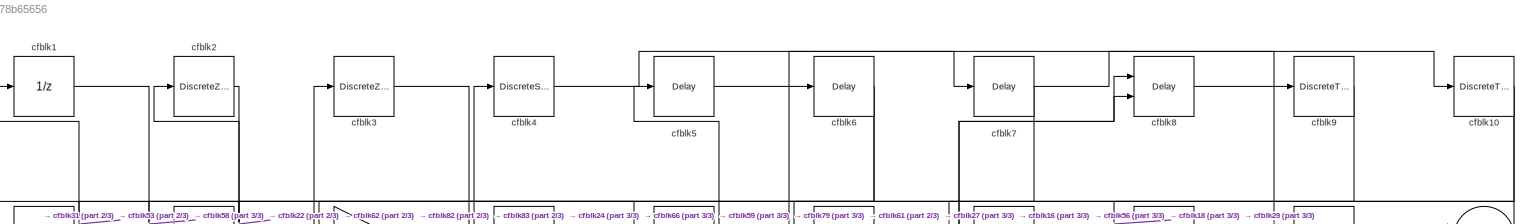
[diagram: root canvas - part 1/3, full width, top band]
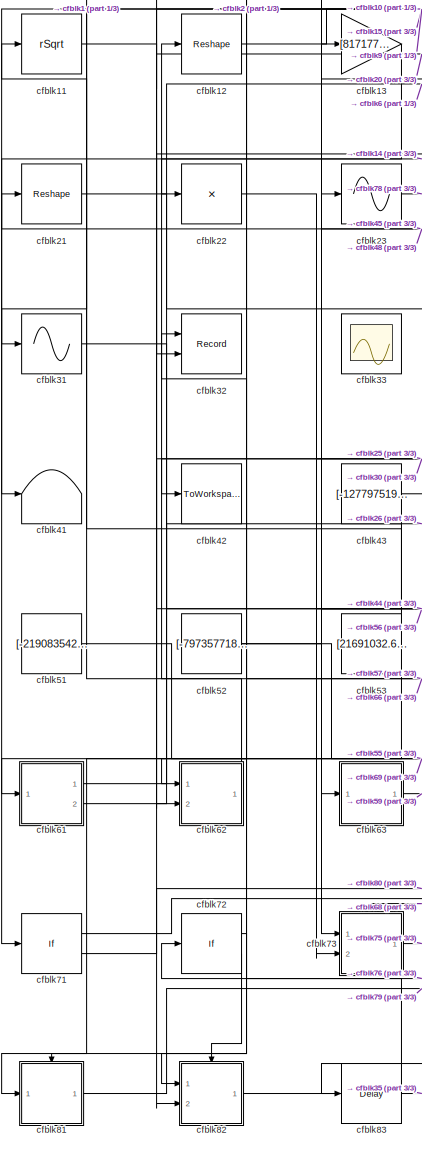
[diagram: root canvas - part 2/3, left side, full height]
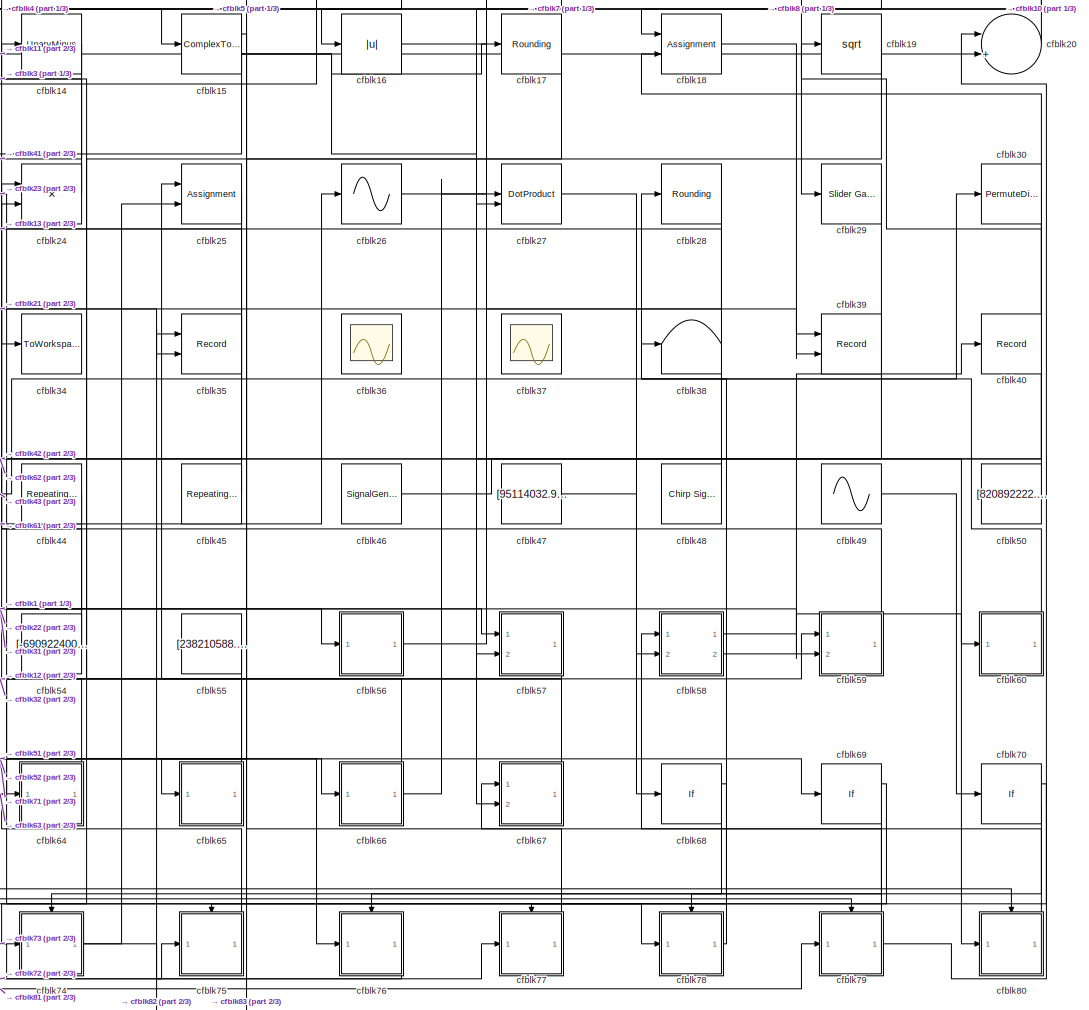
[diagram: root canvas - part 3/3, center side, full height]
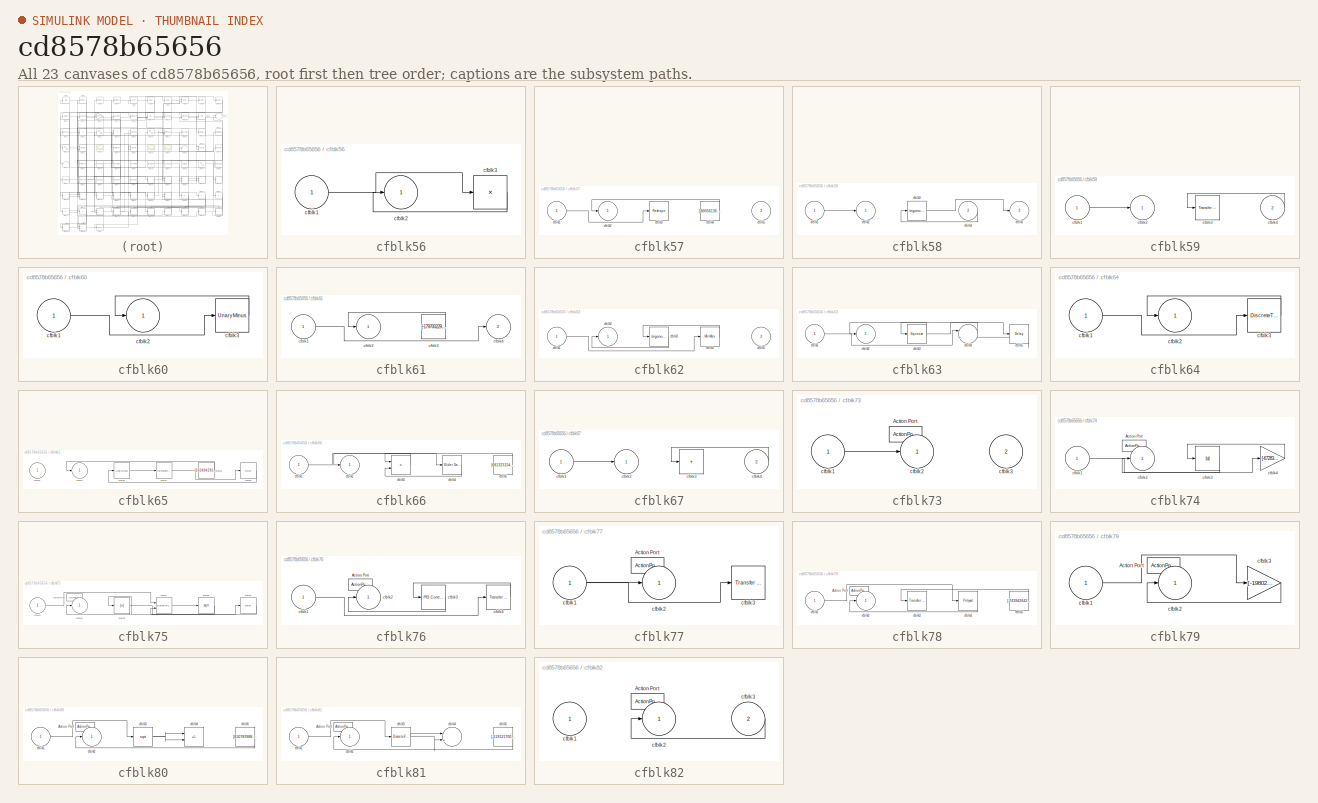
[diagram: thumbnail index - all 23 canvases of the model, root first then tree order]
MODEL slx_cd8578b65656
KIND model
CONFIG AbsTol = auto
CONFIG EnableMultiTasking = off
CONFIG FixedStep = auto
CONFIG MaxStep = auto
CONFIG MinStep = auto
CONFIG RelTol = 1e-3
CONFIG SampleTimeConstraint = Unconstrained
CONFIG SolverName = VariableStepAuto
CONFIG StartTime = 0.0
CONFIG StopTime = 10.0
BLOCK [UnitDelay] cfblk1
  HasFrameUpgradeWarning = on
BLOCK [DiscreteTransferFcn] cfblk10
  InputPortMap = u0
  Ports = [1, 1]
  SampleTime = 1
BLOCK [Sqrt] cfblk11
  AlgorithmType = Newton-Raphson
  Operator = rSqrt
BLOCK [Reshape] cfblk12
  Ports = [1, 1]
BLOCK [Gain] cfblk13
  Gain = [817177572.094569]
BLOCK [UnaryMinus] cfblk14
BLOCK [ComplexToRealImag] cfblk15
  Ports = [1, 2]
BLOCK [Abs] cfblk16
  SaturateOnIntegerOverflow = off
BLOCK [Rounding] cfblk17
BLOCK [Assignment] cfblk18
  DiagnosticForDimensions = Warning
  IndexOptions = Index vector (dialog)
  Indices = 1
  OutputSizes = 1
  Ports = [2, 1]
BLOCK [Sqrt] cfblk19
BLOCK [DiscreteZeroPole] cfblk2
  Gain = 1
  Poles = [0 0.5]
BLOCK [Sum] cfblk20
  Inputs = |++
  Ports = [2, 1]
BLOCK [Reshape] cfblk21
  Ports = [1, 1]
BLOCK [Product] cfblk22
  Inputs = *
  Ports = [1, 1]
BLOCK [Sin] cfblk23
  Ports = [1, 1]
  SampleTime = 0
  TimeSource = Use external signal
BLOCK [Product] cfblk24
  Inputs = **
  Ports = [2, 1]
BLOCK [Assignment] cfblk25
  DiagnosticForDimensions = Warning
  IndexOptions = Index vector (dialog)
  Indices = 1
  OutputSizes = 1
  Ports = [2, 1]
BLOCK [Sin] cfblk26
  Ports = [1, 1]
  SampleTime = 0
  TimeSource = Use external signal
BLOCK [DotProduct] cfblk27
  OutDataTypeStr = Inherit: Inherit via internal rule
BLOCK [Rounding] cfblk28
BLOCK [Reference] cfblk29  REF=simulink/Math
Operations/Slider
Gain
  Ports = [1, 1]
  SourceBlock = simulink/Math\nOperations/Slider\nGain
  SourceProductBaseCode = SL
  SourceType = Slider Gain
BLOCK [DiscreteZeroPole] cfblk3
  Gain = 1
  Poles = [0 0.5]
BLOCK [PermuteDimensions] cfblk30
BLOCK [Sin] cfblk31
  Ports = [1, 1]
  SampleTime = 0
  TimeSource = Use external signal
BLOCK [Record] cfblk32
  CompatibilityTag = XY
  FileSettingsInternal = {"entries":[{"content":{"excelSettings":{"content":{},"type":"Streamout.ExcelSettings"}},"type":"Streamout.FileSettingStorage","uuid":"bd282573-fbed-4e3c-a31e-0f74480bdff8"}],"packageUris":["http://schema.mathworks.com/mf0/streamout_blocks/R2020a"],"version":"1.0"}
  Layout = [1 1]
  Ports = [2]
  SignalsInternal = {"entries":[{"content":{"signals":[{"content":{"blockPath":["sampleModel260/cfblk32"],"channel":[],"dimensions":[1],"domain":"sampleModel260/cfblk32","lineColor":"#a2142f","plots":[1],"port":1,"sid":[""],"signalID":10815,"signalName":"cfblk66"},"type":"RecordBlkView.Signal","uuid":"2e195359-3f8a-491d-84b5-82d640c07245"},{"content":{"blockPath":["sampleModel260/cfblk32"],"channel":[],"dimensions":[...<+387ch>
  VisualizationBindings = {"xyplotplugin":{"info":[{"series":[{"bindingParametersList":[{"parameter":"X-Axis","signalID":10815,"signalName":"cfblk66"},{"parameter":"Y-Axis","signalID":10819,"signalName":"cfblk15:2"}],"seriesID":64850}],"subplotID":1}]}}
BLOCK [Scope] cfblk33
  Floating = on
  NumInputPorts = 1
  Ports = []
BLOCK [ToWorkspace] cfblk34
  FixptAsFi = on
  MaxDataPoints = inf
  Ports = [1]
  SampleTime = -1
  SaveFormat = Timeseries
  VariableName = daacaaq
BLOCK [Record] cfblk35
  CompatibilityTag = XY
  FileSettingsInternal = {"entries":[{"content":{"excelSettings":{"content":{},"type":"Streamout.ExcelSettings"}},"type":"Streamout.FileSettingStorage","uuid":"62094183-dbe6-4528-9498-f446f32e2bde"}],"packageUris":["http://schema.mathworks.com/mf0/streamout_blocks/R2020a"],"version":"1.0"}
  Layout = [1 1]
  Ports = [2]
  SignalsInternal = {"entries":[{"content":{"signals":[{"content":{"blockPath":["sampleModel260/cfblk35"],"channel":[],"dimensions":[1],"domain":"sampleModel260/cfblk35","lineColor":"#a2142f","plots":[1],"port":1,"sid":[""],"signalID":10823,"signalName":"cfblk82"},"type":"RecordBlkView.Signal","uuid":"83f55b33-c295-4031-a869-966a49bba997"},{"content":{"blockPath":["sampleModel260/cfblk35"],"channel":[],"dimensions":[...<+385ch>
  VisualizationBindings = {"xyplotplugin":{"info":[{"series":[{"bindingParametersList":[{"parameter":"X-Axis","signalID":10823,"signalName":"cfblk82"},{"parameter":"Y-Axis","signalID":10827,"signalName":"cfblk21"}],"seriesID":13907}],"subplotID":1}]}}
BLOCK [Scope] cfblk36
  Floating = on
  NumInputPorts = 1
  Ports = []
BLOCK [Scope] cfblk37
  Floating = on
  NumInputPorts = 1
  Ports = []
BLOCK [Terminator] cfblk38
BLOCK [Record] cfblk39
  CompatibilityTag = XY
  FileSettingsInternal = {"entries":[{"content":{"excelSettings":{"content":{},"type":"Streamout.ExcelSettings"}},"type":"Streamout.FileSettingStorage","uuid":"6d992ff3-f237-4add-b4ea-69458d49418b"}],"packageUris":["http://schema.mathworks.com/mf0/streamout_blocks/R2020a"],"version":"1.0"}
  Layout = [1 1]
  Ports = [2]
  SignalsInternal = {"entries":[{"content":{"signals":[{"content":{"blockPath":["sampleModel260/cfblk39"],"channel":[],"dimensions":[1],"domain":"sampleModel260/cfblk39","lineColor":"#a2142f","plots":[1],"port":1,"sid":[""],"signalID":10831,"signalName":"cfblk18"},"type":"RecordBlkView.Signal","uuid":"1a0154d0-4a65-49eb-9d4e-8549016bd023"},{"content":{"blockPath":["sampleModel260/cfblk39"],"channel":[],"dimensions":[...<+385ch>
  VisualizationBindings = {"xyplotplugin":{"info":[{"series":[{"bindingParametersList":[{"parameter":"X-Axis","signalID":10831,"signalName":"cfblk18"},{"parameter":"Y-Axis","signalID":10835,"signalName":"cfblk26"}],"seriesID":38885}],"subplotID":1}]}}
BLOCK [DiscreteStateSpace] cfblk4
BLOCK [Record] cfblk40
  FileSettingsInternal = {"entries":[{"content":{"excelSettings":{"content":{},"type":"Streamout.ExcelSettings"}},"type":"Streamout.FileSettingStorage","uuid":"f35e9f53-43e7-42be-8722-fdc6e73d666a"}],"packageUris":["http://schema.mathworks.com/mf0/streamout_blocks/R2020a"],"version":"1.0"}
  Ports = [1]
  SignalsInternal = {"entries":[{"content":{"signals":[{"content":{"blockPath":["sampleModel260/cfblk40"],"channel":[],"dimensions":[1],"domain":"sampleModel260/cfblk40","lineColor":"#7e2f8e","plots":[1],"port":1,"sid":[""],"signalID":10839,"signalName":"cfblk58:2"},"type":"RecordBlkView.Signal","uuid":"411b6a2f-e48e-41bc-b6cc-fb019a5a836d"}]},"type":"RecordBlkView.InputSignals","uuid":"34515a93-7eeb-4289-942f-1bca73...<+100ch>
  VisualizationBindings = {"sparklinesplugin":{"info":[{"bindingParametersList":[],"subplotID":1}]}}
BLOCK [Terminator] cfblk41
BLOCK [ToWorkspace] cfblk42
  FixptAsFi = on
  MaxDataPoints = inf
  Ports = [1]
  SampleTime = -1
  SaveFormat = Timeseries
  VariableName = egblili
BLOCK [Constant] cfblk43
  SampleTime = 1
  Value = [-127797519.965339]
BLOCK [Reference] cfblk44  REF=simulink/Sources/Repeating
Sequence
Interpolated
  Ports = [0, 1]
  SourceBlock = simulink/Sources/Repeating\nSequence\nInterpolated
  SourceProductBaseCode = SL
  SourceType = Repeating Sequence Interpolated
BLOCK [Reference] cfblk45  REF=simulink/Sources/Repeating
Sequence
Interpolated
  Ports = [0, 1]
  SourceBlock = simulink/Sources/Repeating\nSequence\nInterpolated
  SourceProductBaseCode = SL
  SourceType = Repeating Sequence Interpolated
BLOCK [SignalGenerator] cfblk46
  Amplitude = [-171811111.823902]
  Ports = [0, 1]
  Units = rad/sec
  WaveForm = square
BLOCK [Constant] cfblk47
  SampleTime = 1
  Value = [95114032.951612]
BLOCK [Reference] cfblk48  REF=simulink/Sources/Chirp Signal
  Ports = [0, 1]
  SourceBlock = simulink/Sources/Chirp Signal
  SourceProductBaseCode = SL
  SourceType = chirp
BLOCK [Sin] cfblk49
  Amplitude = [373258375.162552]
  Bias = [-522837099.867518]
  Ports = [0, 1]
  SampleTime = 0
BLOCK [Delay] cfblk5
  InputPortMap = u0
  Ports = [1, 1]
  SampleTime = 1
BLOCK [Constant] cfblk50
  SampleTime = 1
  Value = [820892222.045472]
BLOCK [Constant] cfblk51
  SampleTime = 1
  Value = [-219083542.146578]
BLOCK [Constant] cfblk52
  SampleTime = 1
  Value = [-797357718.353533]
BLOCK [Constant] cfblk53
  SampleTime = 1
  Value = [21691032.621426]
BLOCK [Constant] cfblk54
  SampleTime = 1
  Value = [-690922400.898488]
BLOCK [Constant] cfblk55
  SampleTime = 1
  Value = [238210588.234374]
BLOCK [SubSystem] cfblk56
  Ports = [1, 1]
  RequestExecContextInheritance = off
BLOCK [Inport] cfblk56/cfblk1
BLOCK [Outport] cfblk56/cfblk2
BLOCK [Product] cfblk56/cfblk3
  Inputs = *
  Ports = [1, 1]
BLOCK [SubSystem] cfblk57
  Ports = [2, 1]
  RequestExecContextInheritance = off
BLOCK [Inport] cfblk57/cfblk1
BLOCK [Outport] cfblk57/cfblk2
BLOCK [Reshape] cfblk57/cfblk3
  Ports = [1, 1]
BLOCK [Constant] cfblk57/cfblk4
  SampleTime = 1
  Value = [-80056136.350506]
BLOCK [Inport] cfblk57/cfblk5
  Port = 2
BLOCK [SubSystem] cfblk58
  Ports = [2, 2]
  RequestExecContextInheritance = off
BLOCK [Inport] cfblk58/cfblk1
BLOCK [Outport] cfblk58/cfblk2
BLOCK [Trigonometry] cfblk58/cfblk3
  Ports = [1, 1]
BLOCK [Inport] cfblk58/cfblk4
  Port = 2
BLOCK [Outport] cfblk58/cfblk5
  Port = 2
BLOCK [SubSystem] cfblk59
  Ports = [2, 1]
  RequestExecContextInheritance = off
BLOCK [Inport] cfblk59/cfblk1
BLOCK [Outport] cfblk59/cfblk2
BLOCK [Reference] cfblk59/cfblk3  REF=simulink/Discrete/Transfer Fcn
First Order
  Ports = [1, 1]
  SourceBlock = simulink/Discrete/Transfer Fcn\nFirst Order
  SourceProductBaseCode = SL
  SourceType = First Order Transfer Fcn
BLOCK [Inport] cfblk59/cfblk4
  Port = 2
BLOCK [Delay] cfblk6
  InputPortMap = u0
  Ports = [1, 1]
  SampleTime = 1
BLOCK [SubSystem] cfblk60
  Ports = [1, 1]
  RequestExecContextInheritance = off
BLOCK [Inport] cfblk60/cfblk1
BLOCK [Outport] cfblk60/cfblk2
BLOCK [UnaryMinus] cfblk60/cfblk3
BLOCK [SubSystem] cfblk61
  Ports = [1, 2]
  RequestExecContextInheritance = off
BLOCK [Inport] cfblk61/cfblk1
BLOCK [Outport] cfblk61/cfblk2
BLOCK [Constant] cfblk61/cfblk3
  SampleTime = 1
  Value = [-179700229.476874]
BLOCK [Outport] cfblk61/cfblk4
  Port = 2
BLOCK [SubSystem] cfblk62
  Ports = [2, 1]
  RequestExecContextInheritance = off
BLOCK [Inport] cfblk62/cfblk1
BLOCK [Outport] cfblk62/cfblk2
BLOCK [Trigonometry] cfblk62/cfblk3
  Ports = [1, 1]
BLOCK [MinMax] cfblk62/cfblk4
  Ports = [1, 1]
BLOCK [Inport] cfblk62/cfblk5
  Port = 2
BLOCK [SubSystem] cfblk63
  Ports = [1, 1]
  RequestExecContextInheritance = off
BLOCK [Inport] cfblk63/cfblk1
BLOCK [Outport] cfblk63/cfblk2
BLOCK [Squeeze] cfblk63/cfblk3
BLOCK [Sum] cfblk63/cfblk4
  Inputs = |++
  Ports = [2, 1]
BLOCK [Delay] cfblk63/cfblk5
  InputPortMap = u0
  Ports = [1, 1]
  SampleTime = 1
BLOCK [SubSystem] cfblk64
  Ports = [1, 1]
  RequestExecContextInheritance = off
BLOCK [Inport] cfblk64/cfblk1
BLOCK [Outport] cfblk64/cfblk2
BLOCK [DiscreteTransferFcn] cfblk64/cfblk3
  InputPortMap = u0
  Ports = [1, 1]
  SampleTime = 1
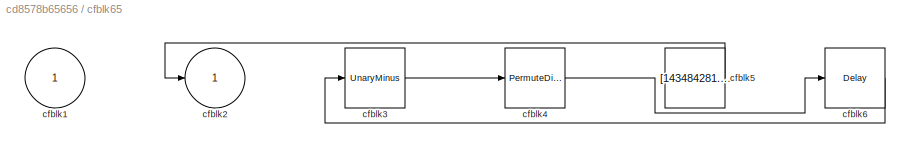
BLOCK [SubSystem] cfblk65
  Ports = [1, 1]
  RequestExecContextInheritance = off
BLOCK [Inport] cfblk65/cfblk1
BLOCK [Outport] cfblk65/cfblk2
BLOCK [UnaryMinus] cfblk65/cfblk3
BLOCK [PermuteDimensions] cfblk65/cfblk4
BLOCK [Constant] cfblk65/cfblk5
  SampleTime = 1
  Value = [143484281.223012]
BLOCK [Delay] cfblk65/cfblk6
  InputPortMap = u0
  Ports = [1, 1]
  SampleTime = 1
BLOCK [SubSystem] cfblk66
  Ports = [1, 1]
  RequestExecContextInheritance = off
BLOCK [Inport] cfblk66/cfblk1
BLOCK [Outport] cfblk66/cfblk2
BLOCK [Product] cfblk66/cfblk3
  Inputs = **
  Ports = [2, 1]
BLOCK [Reference] cfblk66/cfblk4  REF=simulink/Math
Operations/Slider
Gain
  Ports = [1, 1]
  SourceBlock = simulink/Math\nOperations/Slider\nGain
  SourceProductBaseCode = SL
  SourceType = Slider Gain
BLOCK [Constant] cfblk66/cfblk5
  SampleTime = 1
  Value = [681323154.322123]
BLOCK [SubSystem] cfblk67
  Ports = [2, 1]
  RequestExecContextInheritance = off
BLOCK [Inport] cfblk67/cfblk1
BLOCK [Outport] cfblk67/cfblk2
BLOCK [Sum] cfblk67/cfblk3
  IconShape = rectangular
  Inputs = +
  Ports = [1, 1]
BLOCK [Inport] cfblk67/cfblk4
  Port = 2
BLOCK [If] cfblk68
  IfExpression = u1 >= 0
  Ports = [1, 2]
  SampleTime = 1
BLOCK [If] cfblk69
  IfExpression = u1 >= 0
  Ports = [1, 2]
  SampleTime = 1
BLOCK [Delay] cfblk7
  InputPortMap = u0
  Ports = [1, 1]
  SampleTime = 1
BLOCK [If] cfblk70
  IfExpression = u1 >= 0
  Ports = [1, 2]
  SampleTime = 1
BLOCK [If] cfblk71
  IfExpression = u1 >= 0
  Ports = [1, 2]
  SampleTime = 1
BLOCK [If] cfblk72
  IfExpression = u1 >= 0
  Ports = [1, 2]
  SampleTime = 1
BLOCK [SubSystem] cfblk73
  Ports = [2, 1, 0, 0, 0, 0, 0, 1]
  RequestExecContextInheritance = off
  TreatAsAtomicUnit = on
BLOCK [ActionPort] cfblk73/Action Port
  ActionPortLabel = if(u1 >= 0)
BLOCK [Inport] cfblk73/cfblk1
BLOCK [Outport] cfblk73/cfblk2
BLOCK [Inport] cfblk73/cfblk3
  Port = 2
BLOCK [SubSystem] cfblk74
  Ports = [1, 1, 0, 0, 0, 0, 0, 1]
  RequestExecContextInheritance = off
  TreatAsAtomicUnit = on
BLOCK [ActionPort] cfblk74/Action Port
  ActionPortLabel = else
BLOCK [Inport] cfblk74/cfblk1
BLOCK [Outport] cfblk74/cfblk2
BLOCK [Abs] cfblk74/cfblk3
  SaturateOnIntegerOverflow = off
BLOCK [Gain] cfblk74/cfblk4
  Gain = [-67283176.554491]
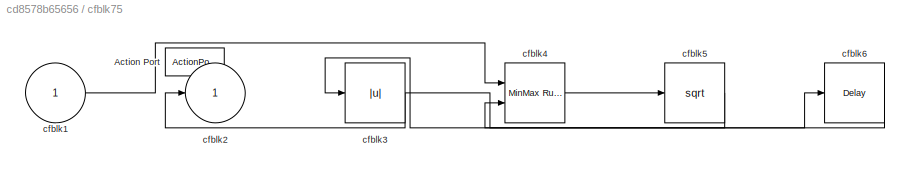
BLOCK [SubSystem] cfblk75
  Ports = [1, 1, 0, 0, 0, 0, 0, 1]
  RequestExecContextInheritance = off
  TreatAsAtomicUnit = on
BLOCK [ActionPort] cfblk75/Action Port
  ActionPortLabel = if(u1 >= 0)
BLOCK [Inport] cfblk75/cfblk1
BLOCK [Outport] cfblk75/cfblk2
BLOCK [Abs] cfblk75/cfblk3
  SaturateOnIntegerOverflow = off
BLOCK [Reference] cfblk75/cfblk4  REF=simulink/Math
Operations/MinMax
Running
Resettable
  Ports = [2, 1]
  SourceBlock = simulink/Math\nOperations/MinMax\nRunning\nResettable
  SourceProductBaseCode = SL
  SourceType = MinMax Running Resettable
BLOCK [Sqrt] cfblk75/cfblk5
BLOCK [Delay] cfblk75/cfblk6
  InputPortMap = u0
  Ports = [1, 1]
BLOCK [SubSystem] cfblk76
  Ports = [1, 1, 0, 0, 0, 0, 0, 1]
  RequestExecContextInheritance = off
  TreatAsAtomicUnit = on
BLOCK [ActionPort] cfblk76/Action Port
  ActionPortLabel = else
BLOCK [Inport] cfblk76/cfblk1
BLOCK [Outport] cfblk76/cfblk2
BLOCK [Reference] cfblk76/cfblk3  REF=slpidlib/PID Controller
  Ports = [1, 1]
  SourceBlock = slpidlib/PID Controller
  SourceProductBaseCode = SL
  SourceType = PID 1dof
BLOCK [Reference] cfblk76/cfblk4  REF=simulink/Discrete/Transfer Fcn
Lead or Lag
  Ports = [1, 1]
  SourceBlock = simulink/Discrete/Transfer Fcn\nLead or Lag
  SourceProductBaseCode = SL
  SourceType = Lead or Lag Compensator
BLOCK [SubSystem] cfblk77
  Ports = [1, 1, 0, 0, 0, 0, 0, 1]
  RequestExecContextInheritance = off
  TreatAsAtomicUnit = on
BLOCK [ActionPort] cfblk77/Action Port
  ActionPortLabel = if(u1 >= 0)
BLOCK [Inport] cfblk77/cfblk1
BLOCK [Outport] cfblk77/cfblk2
BLOCK [Reference] cfblk77/cfblk3  REF=simulink/Discrete/Transfer Fcn
Lead or Lag
  Ports = [1, 1]
  SourceBlock = simulink/Discrete/Transfer Fcn\nLead or Lag
  SourceProductBaseCode = SL
  SourceType = Lead or Lag Compensator
BLOCK [SubSystem] cfblk78
  Ports = [1, 1, 0, 0, 0, 0, 0, 1]
  RequestExecContextInheritance = off
  TreatAsAtomicUnit = on
BLOCK [ActionPort] cfblk78/Action Port
  ActionPortLabel = else
BLOCK [Inport] cfblk78/cfblk1
BLOCK [Outport] cfblk78/cfblk2
BLOCK [Reference] cfblk78/cfblk3  REF=simulink/Discrete/Transfer Fcn
First Order
  Ports = [1, 1]
  SourceBlock = simulink/Discrete/Transfer Fcn\nFirst Order
  SourceProductBaseCode = SL
  SourceType = First Order Transfer Fcn
BLOCK [Polyval] cfblk78/cfblk4
  Coefs = [ +2.081618890e-019, -1.441693666e-014, +4.719686976e-010, -8.536869453e-006, +1.621573104e-001, -8.087801117e+001 ]
BLOCK [Constant] cfblk78/cfblk5
  SampleTime = 1
  Value = [-743942642.900843]
BLOCK [SubSystem] cfblk79
  Ports = [1, 1, 0, 0, 0, 0, 0, 1]
  RequestExecContextInheritance = off
  TreatAsAtomicUnit = on
BLOCK [ActionPort] cfblk79/Action Port
  ActionPortLabel = if(u1 >= 0)
BLOCK [Inport] cfblk79/cfblk1
BLOCK [Outport] cfblk79/cfblk2
BLOCK [Gain] cfblk79/cfblk3
  Gain = [-1980295.320894]
BLOCK [Delay] cfblk8
  DelayLengthSource = Input port
  InputPortMap = u0,p1
  Ports = [2, 1]
  SampleTime = 1
BLOCK [SubSystem] cfblk80
  Ports = [1, 1, 0, 0, 0, 0, 0, 1]
  RequestExecContextInheritance = off
  TreatAsAtomicUnit = on
BLOCK [ActionPort] cfblk80/Action Port
  ActionPortLabel = else
BLOCK [Inport] cfblk80/cfblk1
BLOCK [Outport] cfblk80/cfblk2
BLOCK [Sqrt] cfblk80/cfblk3
BLOCK [Sum] cfblk80/cfblk4
  IconShape = rectangular
  Inputs = +-
  Ports = [2, 1]
BLOCK [Constant] cfblk80/cfblk5
  SampleTime = 1
  Value = [810783988.333390]
BLOCK [SubSystem] cfblk81
  Ports = [1, 1, 0, 0, 0, 0, 0, 1]
  RequestExecContextInheritance = off
  TreatAsAtomicUnit = on
BLOCK [ActionPort] cfblk81/Action Port
  ActionPortLabel = if(u1 >= 0)
BLOCK [Inport] cfblk81/cfblk1
BLOCK [Outport] cfblk81/cfblk2
BLOCK [DiscreteFilter] cfblk81/cfblk3
  InputPortMap = u0
  Ports = [1, 1]
BLOCK [Sum] cfblk81/cfblk4
  Inputs = |++
  Ports = [2, 1]
BLOCK [Constant] cfblk81/cfblk5
  SampleTime = 1
  Value = [-119121700.265697]
BLOCK [SubSystem] cfblk82
  Ports = [2, 1, 0, 0, 0, 0, 0, 1]
  RequestExecContextInheritance = off
  TreatAsAtomicUnit = on
BLOCK [ActionPort] cfblk82/Action Port
  ActionPortLabel = else
BLOCK [Inport] cfblk82/cfblk1
BLOCK [Outport] cfblk82/cfblk2
BLOCK [Inport] cfblk82/cfblk3
  Port = 2
BLOCK [Delay] cfblk83
  InputPortMap = u0
  Ports = [1, 1]
  SampleTime = 1
BLOCK [DiscreteTransferFcn] cfblk9
  InputPortMap = u0
  Ports = [1, 1]
  SampleTime = 1
NET cfblk10:1 -> cfblk18:1, cfblk61:1
LINE cfblk11:1 -> cfblk20:2
LINE cfblk12:1 -> cfblk15:1
LINE cfblk13:1 -> cfblk82:1
LINE cfblk14:1 -> cfblk41:1
LINE cfblk15:1 -> cfblk83:1
NET cfblk15:2 -> cfblk17:1, cfblk32:2, cfblk67:2
LINE cfblk16:1 -> cfblk8:1
LINE cfblk17:1 -> cfblk74:1
LINE cfblk18:1 -> cfblk39:1
LINE cfblk19:1 -> cfblk65:1
LINE cfblk1:1 -> cfblk58:2
LINE cfblk20:1 -> cfblk16:1
LINE cfblk21:1 -> cfblk35:2
LINE cfblk22:1 -> cfblk57:1
LINE cfblk23:1 -> cfblk78:1
LINE cfblk24:1 -> cfblk3:1
LINE cfblk25:1 -> cfblk42:1
LINE cfblk26:1 -> cfblk39:2
LINE cfblk27:1 -> cfblk59:2
LINE cfblk28:1 -> cfblk34:1
LINE cfblk29:1 -> cfblk57:2
LINE cfblk2:1 -> cfblk22:1
NET cfblk30:1 -> cfblk18:2, cfblk62:2, cfblk73:2
LINE cfblk31:1 -> cfblk56:1
LINE cfblk3:1 -> cfblk66:1
NET cfblk43:1 -> cfblk30:1, cfblk63:1
LINE cfblk44:1 -> cfblk73:1
LINE cfblk45:1 -> cfblk13:1
LINE cfblk46:1 -> cfblk80:1
LINE cfblk47:1 -> cfblk68:1
LINE cfblk48:1 -> cfblk11:1
LINE cfblk49:1 -> cfblk70:1
LINE cfblk4:1 -> cfblk10:1
LINE cfblk50:1 -> cfblk19:1
LINE cfblk51:1 -> cfblk76:1
NET cfblk52:1 -> cfblk23:1, cfblk69:1
NET cfblk53:1 -> cfblk1:1, cfblk81:1
LINE cfblk54:1 -> cfblk24:1
LINE cfblk55:1 -> cfblk71:1
LINE cfblk56/cfblk1:1 -> cfblk56/cfblk3:1
LINE cfblk56/cfblk3:1 -> cfblk56/cfblk2:1
LINE cfblk56:1 -> cfblk8:2
LINE cfblk57/cfblk1:1 -> cfblk57/cfblk3:1
LINE cfblk57/cfblk4:1 -> cfblk57/cfblk2:1
LINE cfblk57:1 -> cfblk12:1
LINE cfblk58/cfblk1:1 -> cfblk58/cfblk2:1
LINE cfblk58/cfblk3:1 -> cfblk58/cfblk5:1
LINE cfblk58/cfblk4:1 -> cfblk58/cfblk3:1
LINE cfblk58:1 -> cfblk60:1
LINE cfblk58:2 -> cfblk40:1
LINE cfblk59/cfblk1:1 -> cfblk59/cfblk2:1
LINE cfblk59/cfblk4:1 -> cfblk59/cfblk3:1
LINE cfblk59:1 -> cfblk4:1
LINE cfblk5:1 -> cfblk7:1
LINE cfblk60/cfblk1:1 -> cfblk60/cfblk3:1
LINE cfblk60/cfblk3:1 -> cfblk60/cfblk2:1
LINE cfblk60:1 -> cfblk28:1
LINE cfblk61/cfblk1:1 -> cfblk61/cfblk4:1
LINE cfblk61/cfblk3:1 -> cfblk61/cfblk2:1
LINE cfblk61:1 -> cfblk6:1
LINE cfblk61:2 -> cfblk26:1
LINE cfblk62/cfblk1:1 -> cfblk62/cfblk4:1
LINE cfblk62/cfblk3:1 -> cfblk62/cfblk2:1
LINE cfblk62/cfblk4:1 -> cfblk62/cfblk3:1
LINE cfblk62:1 -> cfblk21:1
LINE cfblk63/cfblk1:1 -> cfblk63/cfblk4:1
NET cfblk63/cfblk3:1 -> cfblk63/cfblk2:1, cfblk63/cfblk5:1
LINE cfblk63/cfblk4:1 -> cfblk63/cfblk3:1
LINE cfblk63/cfblk5:1 -> cfblk63/cfblk4:2
LINE cfblk63:1 -> cfblk59:1
LINE cfblk64/cfblk1:1 -> cfblk64/cfblk3:1
LINE cfblk64/cfblk3:1 -> cfblk64/cfblk2:1
LINE cfblk64:1 -> cfblk24:2
LINE cfblk65/cfblk3:1 -> cfblk65/cfblk4:1
LINE cfblk65/cfblk4:1 -> cfblk65/cfblk6:1
LINE cfblk65/cfblk5:1 -> cfblk65/cfblk2:1
LINE cfblk65/cfblk6:1 -> cfblk65/cfblk3:1
LINE cfblk65:1 -> cfblk25:1
LINE cfblk66/cfblk1:1 -> cfblk66/cfblk4:1
LINE cfblk66/cfblk3:1 -> cfblk66/cfblk2:1
LINE cfblk66/cfblk4:1 -> cfblk66/cfblk3:2
LINE cfblk66/cfblk5:1 -> cfblk66/cfblk3:1
NET cfblk66:1 -> cfblk27:1, cfblk32:1
LINE cfblk67/cfblk1:1 -> cfblk67/cfblk2:1
LINE cfblk67/cfblk4:1 -> cfblk67/cfblk3:1
LINE cfblk67:1 -> cfblk14:1
LINE cfblk68:1 -> cfblk73:ifaction
LINE cfblk68:2 -> cfblk74:ifaction
LINE cfblk69:1 -> cfblk75:ifaction
LINE cfblk69:2 -> cfblk76:ifaction
NET cfblk6:1 -> cfblk62:1, cfblk82:2
LINE cfblk70:1 -> cfblk77:ifaction
LINE cfblk70:2 -> cfblk78:ifaction
LINE cfblk71:1 -> cfblk79:ifaction
LINE cfblk71:2 -> cfblk80:ifaction
LINE cfblk72:1 -> cfblk81:ifaction
LINE cfblk72:2 -> cfblk82:ifaction
LINE cfblk73/cfblk1:1 -> cfblk73/cfblk2:1
LINE cfblk73:1 -> cfblk75:1
LINE cfblk74/cfblk1:1 -> cfblk74/cfblk4:1
LINE cfblk74/cfblk3:1 -> cfblk74/cfblk2:1
LINE cfblk74/cfblk4:1 -> cfblk74/cfblk3:1
NET cfblk74:1 -> cfblk25:2, cfblk77:1
LINE cfblk75/cfblk1:1 -> cfblk75/cfblk4:1
NET cfblk75/cfblk3:1 -> cfblk75/cfblk2:1, cfblk75/cfblk6:1
LINE cfblk75/cfblk4:1 -> cfblk75/cfblk5:1
LINE cfblk75/cfblk5:1 -> cfblk75/cfblk3:1
LINE cfblk75/cfblk6:1 -> cfblk75/cfblk4:2
LINE cfblk75:1 -> cfblk64:1
LINE cfblk76/cfblk1:1 -> cfblk76/cfblk4:1
LINE cfblk76/cfblk3:1 -> cfblk76/cfblk2:1
LINE cfblk76/cfblk4:1 -> cfblk76/cfblk3:1
LINE cfblk76:1 -> cfblk72:1
NET cfblk77/cfblk1:1 -> cfblk77/cfblk2:1, cfblk77/cfblk3:1
LINE cfblk77:1 -> cfblk67:1
LINE cfblk78/cfblk1:1 -> cfblk78/cfblk4:1
LINE cfblk78/cfblk4:1 -> cfblk78/cfblk2:1
LINE cfblk78/cfblk5:1 -> cfblk78/cfblk3:1
LINE cfblk78:1 -> cfblk38:1
LINE cfblk79/cfblk1:1 -> cfblk79/cfblk3:1
LINE cfblk79/cfblk3:1 -> cfblk79/cfblk2:1
NET cfblk79:1 -> cfblk20:1, cfblk5:1
NET cfblk7:1 -> cfblk27:2, cfblk9:1
LINE cfblk80/cfblk1:1 -> cfblk80/cfblk3:1
NET cfblk80/cfblk3:1 -> cfblk80/cfblk4:1, cfblk80/cfblk4:2
LINE cfblk80/cfblk5:1 -> cfblk80/cfblk2:1
LINE cfblk80:1 -> cfblk58:1
LINE cfblk81/cfblk1:1 -> cfblk81/cfblk3:1
NET cfblk81/cfblk3:1 -> cfblk81/cfblk4:1, cfblk81/cfblk4:2
LINE cfblk81/cfblk5:1 -> cfblk81/cfblk2:1
LINE cfblk81:1 -> cfblk79:1
LINE cfblk82/cfblk3:1 -> cfblk82/cfblk2:1
LINE cfblk82:1 -> cfblk35:1
LINE cfblk83:1 -> cfblk2:1
LINE cfblk8:1 -> cfblk29:1
LINE cfblk9:1 -> cfblk31:1
note: NET lines group one-source signal fan-out (src -> all destinations, sorted); 1:1 wires keep LINE
